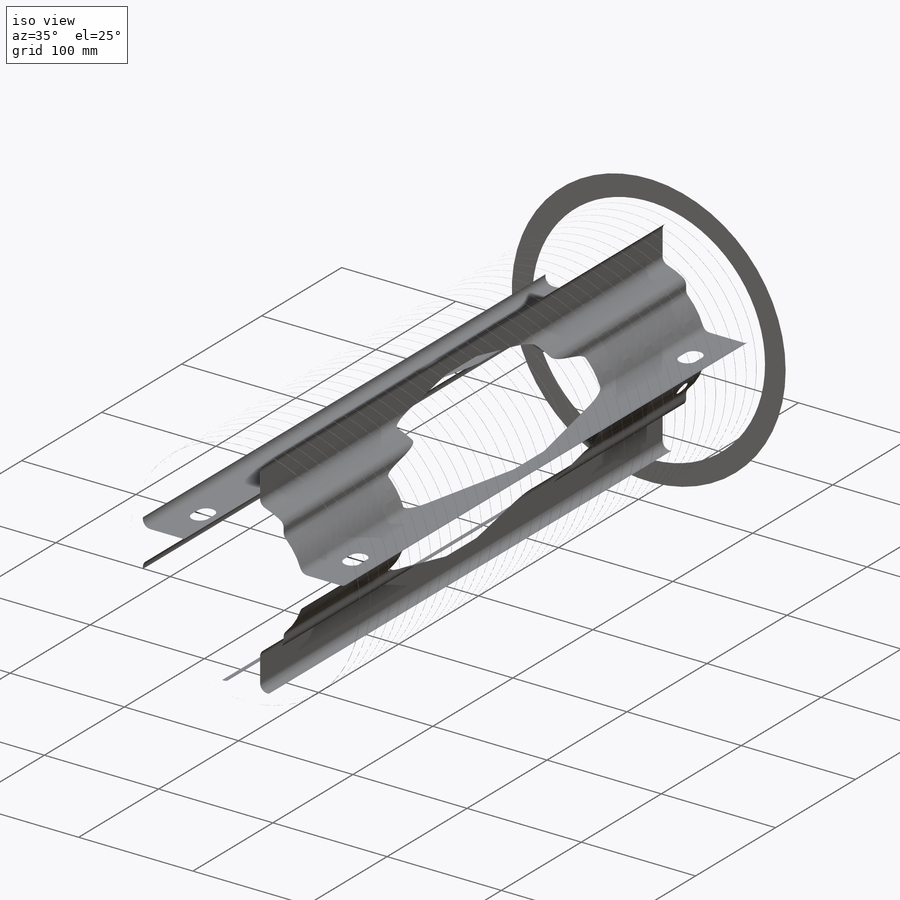
[diagram: iso view]
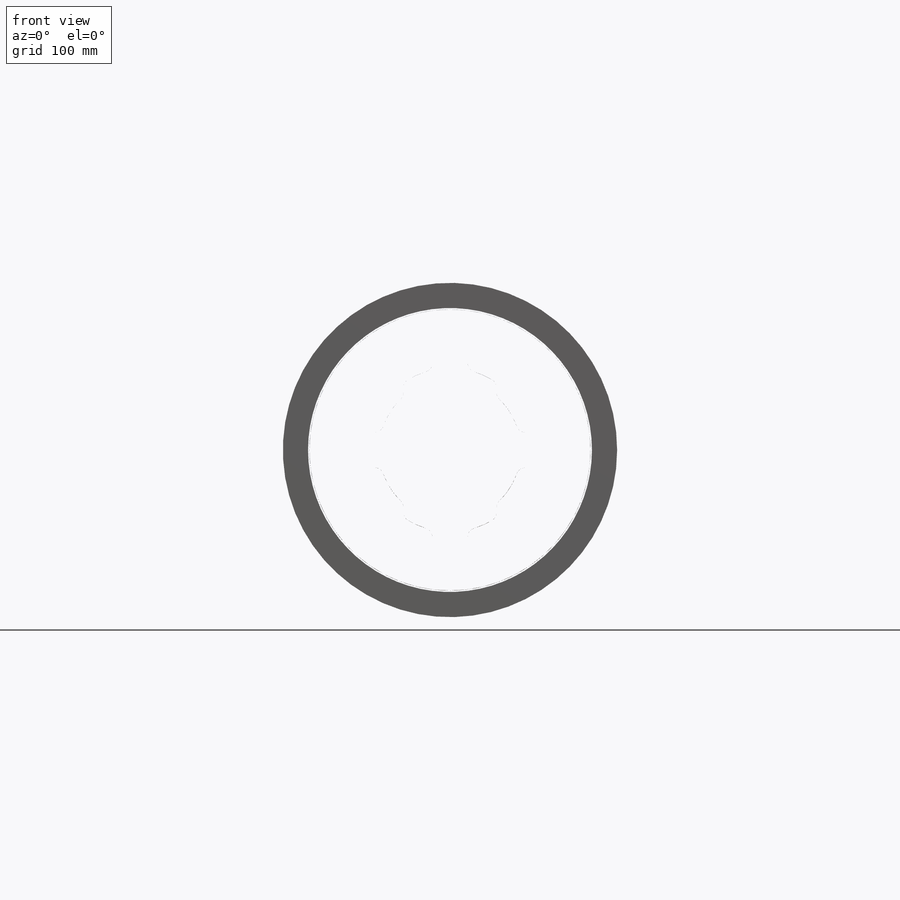
[diagram: front view]
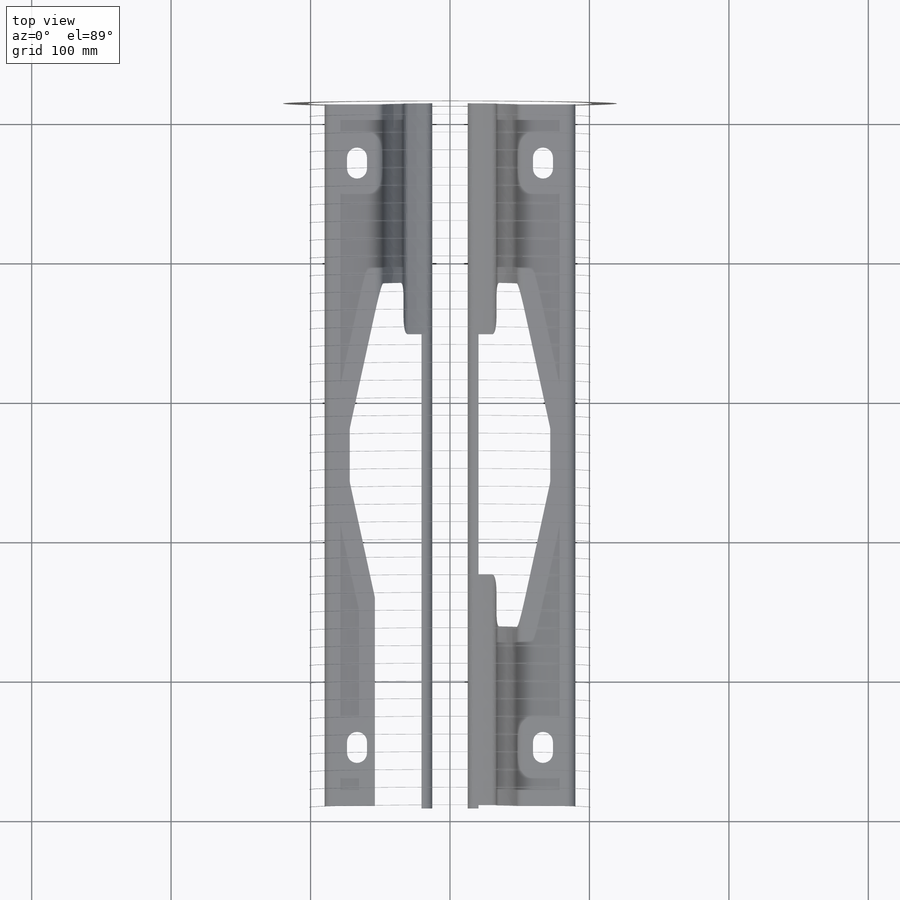
[diagram: top view]
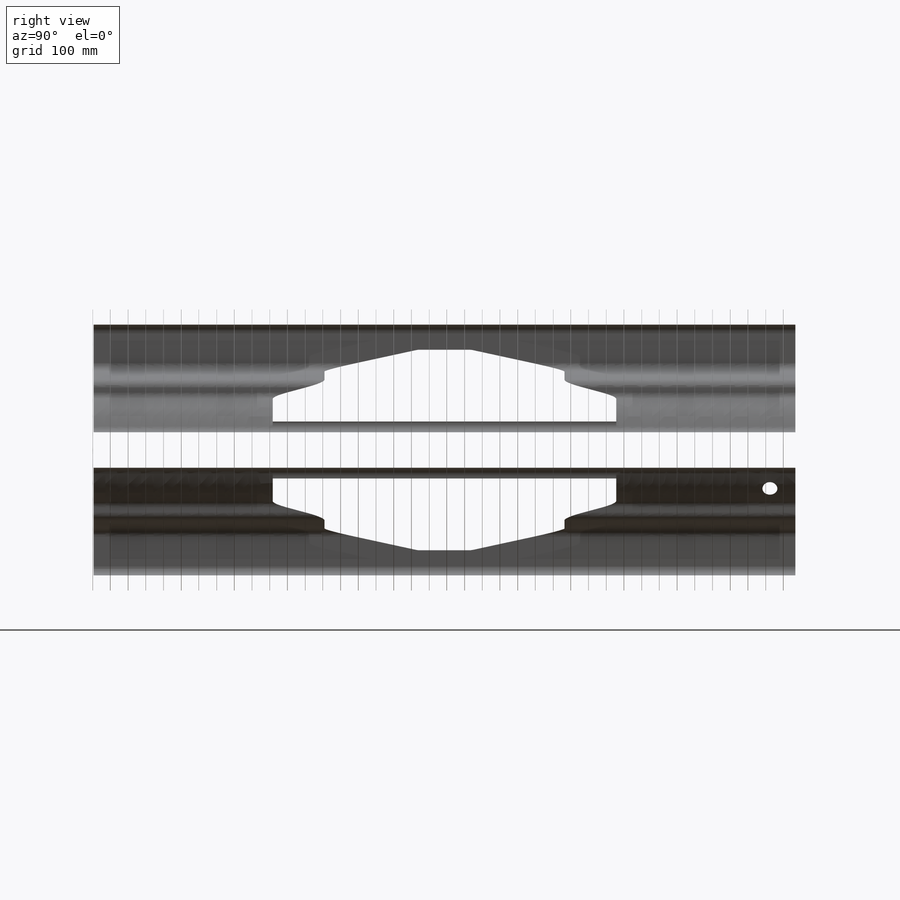
[diagram: right view]
SOLIDWORKS PART (.sldprt)
format: sldprt  version: not decoded by parser v0  size: 2,369,024 bytes
history: native  units: mm
features: sketch x16, plane x7, cut_extrude x7, extrude x3, cut_revolve x2, material x1, revolve x1, pattern_linear x1, chamfer x1, hole x1, mirror x1 (+11 scaffold rows collapsed)
feature tree (52):
  scaffold x11  (default folders/planes/origin — collapsed)
  material  "Material <not specified>"
  plane  "Plane1"  Offset=0mm
  plane  "Plane2"  Offset=0mm
  plane  "Plane3"  Offset=0mm
  plane  "END PLANE"  Offset=520.7mm
  sketch  "Sketch1"  dims[D1=201.6125mm]
  extrude  "Extrude1"  [1 undecoded]
  sketch  "Sketch2"  dims[D1=239.7125mm D2=201.6125mm]
  extrude  "Extrude2"  Depth=7.9375mm
  sketch  "Sketch3"  dims[D1=239.7125mm D2=201.6125mm]
  extrude  "Extrude3"  Depth=7.9375mm
  sketch  "Sketch4"  dims[D1=54.0131mm]
  cut_extrude  "Cut-Extrude1"  [1 undecoded]
  sketch  "Sketch5"  dims[D1=~28.53055mm]
  cut_extrude  "Cut-Extrude2"  Depth=88.9mm
  sketch  "Sketch6"  dims[D1=184.15mm]
  cut_extrude  "Cut-Extrude3"  Depth=8.73125mm
  sketch  "Sketch7"  dims[D1=184.15mm]
  cut_extrude  "Cut-Extrude4"  Depth=8.73125mm
  sketch  "Sketch8"  dims[D1=5.9436mm D2=5.9436mm D3=1.143mm D4=7.9375mm D5=~100.80625mm]
  revolve  "Revolve1"  Angle=360deg
  pattern_linear  "LPattern1"  Count1=40 Count2=1 Spacing1=12.7mm Spacing2=50mm
  sketch  "Sketch9"  dims[c1.D1=5.9436mm c1.D2=5.9436mm c1.D14=5.9436mm c1.D15=5.9436mm c2.D14=5.9436mm c2.D15=5.9436mm c2.D2=~23.167249mm c2.D3=~3.939521mm c2.D4=~14.36684mm c2.D5=7.9375mm c2.D6=~104.745771mm c2.D7=3.175mm c3.D6=~106.748784mm c3.D7=~106.748784mm c4.D6=3.175mm c4.D7=~13.53342mm c4.D8=~3.400087mm c4.D9=~104.745771mm c4.D10=7.9375mm c4.D11=3.175mm c4.D12=~14.36684mm c4.D13=~3.939521mm c4.D16=~104.483829mm c4.D17=~2.949913mm c4.D18=~5.708463mm c5.D13=~3.939521mm c5.D18=~3.939521mm c6.D13=~3.939521mm c6.D18=~13.53342mm c6.D10=~13.53342mm c7.D18=7.9375mm c7.D10=~14.36684mm c7.D11=7.9375mm c7.D12=3.175mm c7.D13=~3.939521mm c7.D15=~21.164235mm c7.D16=~3.400087mm c7.D17=~13.53342mm c8.D18=104.7496mm]
  cut_revolve  "Cut-Revolve1"  Angle=360deg
  plane  "Plane6"
  sketch  "Sketch10"  dims[D1=15.875mm D2=17.4625mm D3=82.55mm]
  cut_extrude  "Cut-Extrude5"  [1 undecoded]
  chamfer  "Chamfer1"  Distance=3.175mm Angle=45deg
  plane  "Plane7"
  plane  "Plane9"  Offset=100.80625mm
  sketch  "Sketch39"
  hole  "1/2-13 Tapped Hole6"  Diameter=10.71626mm Depth=101.6mm
  sketch  "Sketch43"  dims[D1=26.9875mm]
  sketch  "Sketch42"  dims[hole-wizard template sketch: 29 standard entries collapsed; hole parameters kept: c8.Tap Drill Depth=101.6mm c8.Thread Major Dia.=12.7mm c8.Thread Depth=25.4mm c8.D5=~14.816244mm c8.Drill Angle=118.0deg]
  sketch  "Sketch44"  dims[D1=~13.49375mm D2=26.9875mm]
  cut_extrude  "17/32 DRILL"  [1 undecoded]
  sketch  "Sketch45"  dims[D8=12.7mm D9=12.7mm D1=~84.92998mm D2=~84.92998mm D3=241.3mm D4=241.3mm D5=73.025mm D6=39.6875mm D7=39.6875mm]
  cut_revolve  "Cut-Revolve2"  Angle=360deg
  sketch  "Sketch46"  dims[c1.D1=14.2875mm c1.D2=14.2875mm c1.D4=~7.14375mm c1.D9=~7.14375mm c2.D2=66.675mm c2.D3=~46.83125mm c2.D4=7.9375mm c2.D5=14.2875mm c2.D6=66.675mm c2.D7=46.8376mm c2.D8=7.9375mm c2.D10=14.2875mm]
  cut_extrude  "Cut-Extrude7"  [1 undecoded]
  mirror  "Mirror1"
decode coverage: 26 of 33 modeling features carry decoded parameters
note: ~ marks probable driven/reference dimensions
note: 5 parameter values undecoded
summary: no parameter record found for 5 features
note: suppression state not decoded; provenance and decode notes live in map.json
